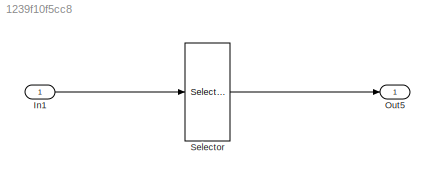
MODEL slx_1239f10f5cc8
KIND model
CONFIG AbsTol = auto
CONFIG EnableMultiTasking = on
CONFIG FixedStep = 0.1
CONFIG MaxStep = auto
CONFIG MinStep = auto
CONFIG RelTol = 1e-3
CONFIG SampleTimeConstraint = Unconstrained
CONFIG Solver = FixedStepAuto
CONFIG SolverName = FixedStepAuto
CONFIG StartTime = 0.0
CONFIG StopTime = 10.0
WORKSPACE source: MAT-file member
WORKSPACE abc = 2
BLOCK [Inport] In1
  IconDisplay = Port number
  PortDimensions = [4 5 6 7]
BLOCK [Outport] Out5
  IconDisplay = Port number
BLOCK [Selector] Selector
  IndexMode = Zero-based
  IndexOptions = Select all,Index vector (dialog),Starting index (dialog),Index vector (dialog)
  Indices = [1 3],[2 3],2,[3 1 2]
  InputPortWidth = 3
  NumberOfDimensions = 4
  OutputSizes = 1,abc,3,1
  Ports = [1, 1]
LINE In1:1 -> Selector:1
LINE Selector:1 -> Out5:1
